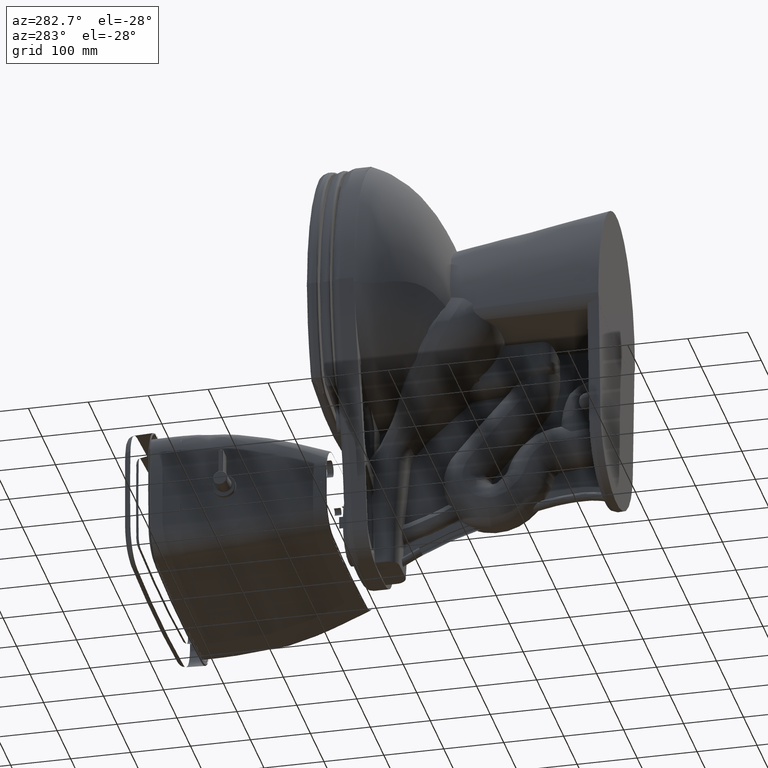
[diagram: clean part render]
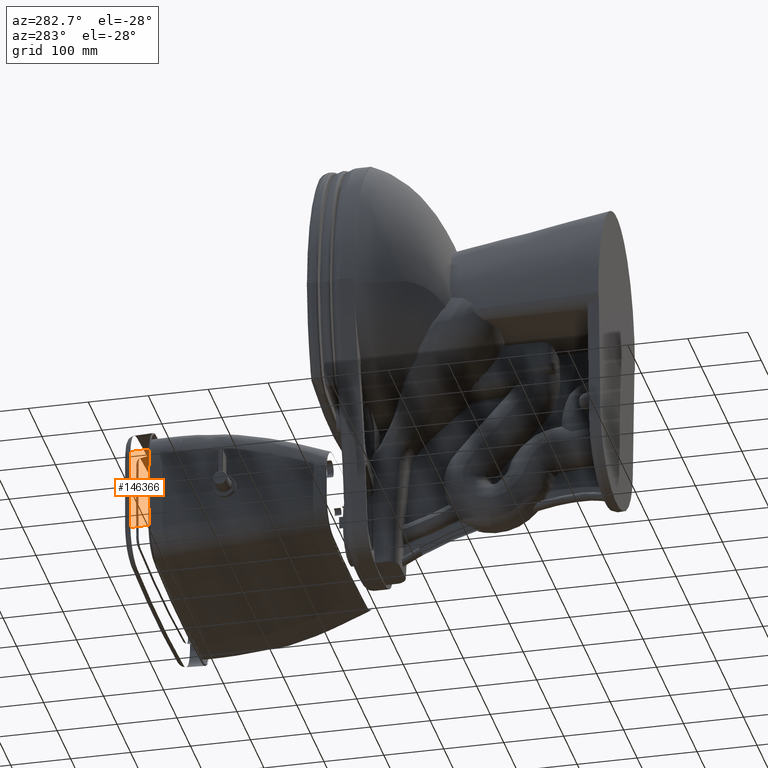
[diagram: same view with one face highlighted and labeled with its STEP entity id]
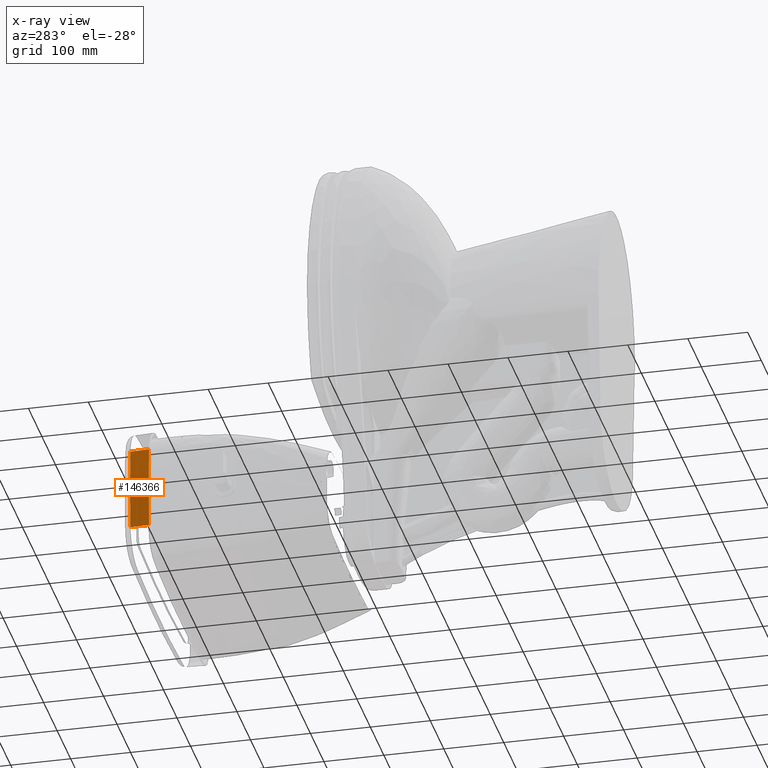
[diagram: x-ray of the same camera — body ghosted, the highlighted face saturated]
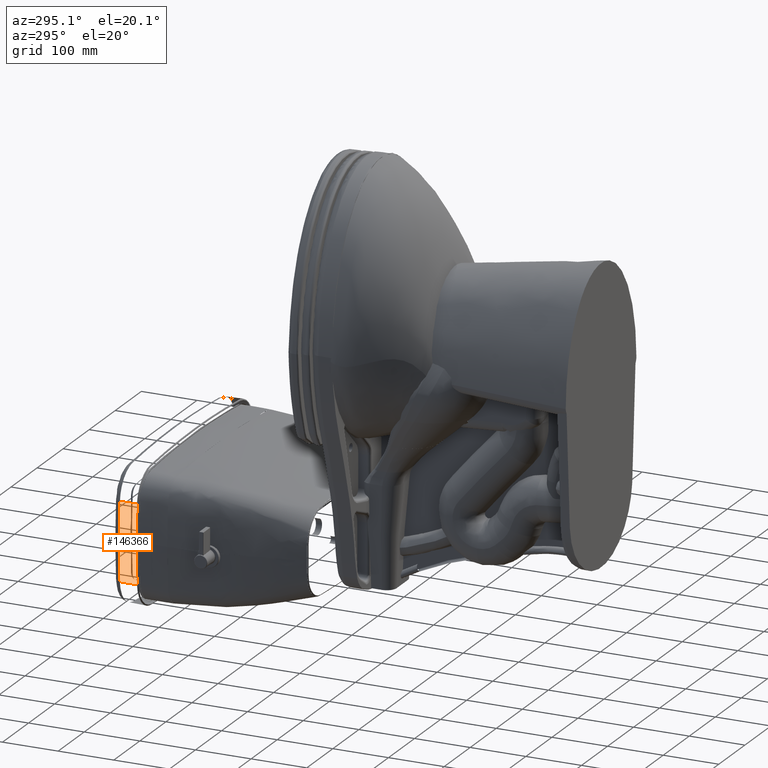
[diagram: same view with one face highlighted and labeled with its STEP entity id]
A machine part, auxiliary view. The second image highlights one B-rep face of the part: STEP entity #146366.
The next image is the same camera in x-ray: the body ghosted, the highlighted face saturated — about 0% of this face is hidden behind the body in this view.
A second angle (auxiliary view) of the same face is appended — the face is thin or edge-on in the first view.
In plain terms, the highlighted conical surface has half-angle 2 deg.
Its self-contained STEP definition (entity closure, byte-faithful):
#1332 = CARTESIAN_POINT ( 'NONE',  ( -8.689776128685673800, 8.799267495617403500, 29.93419364536101000 ) ) ;
#7446 = LINE ( 'NONE', #28578, #119620 ) ;
#9044 = EDGE_CURVE ( 'NONE', #10402, #159187, #197382, .T. ) ;
#10402 = VERTEX_POINT ( 'NONE', #121578 ) ;
#16206 = CARTESIAN_POINT ( 'NONE',  ( -8.689776128508579900, 14.29361612886303800, 29.93548822126819800 ) ) ;
#17705 = CARTESIAN_POINT ( 'NONE',  ( 31.60824756987104000, 11.54644181361788600, 29.93483010299186400 ) ) ;
#28578 = CARTESIAN_POINT ( 'NONE',  ( -8.689776128668755800, 8.799267495618442700, 29.93419364584665500 ) ) ;
#29254 = ORIENTED_EDGE ( 'NONE', *, *, #176542, .T. ) ;
#31294 = ORIENTED_EDGE ( 'NONE', *, *, #76705, .T. ) ;
#33793 = VECTOR ( 'NONE', #66167, 39.37007874015748900 ) ;
#49313 = EDGE_LOOP ( 'NONE', ( #29254, #102422, #82248, #31294 ) ) ;
#55717 = DIRECTION ( 'NONE',  ( 2.687496538635198400E-007, -0.0002356194468205297500, 0.9999999722417017800 ) ) ;
#57031 = VERTEX_POINT ( 'NONE', #1332 ) ;
#60432 = DIRECTION ( 'NONE',  ( -2.687496538635198400E-007, 0.0002356194468205297500, -0.9999999722417017800 ) ) ;
#63698 = AXIS2_PLACEMENT_3D ( 'NONE', #17705, #153775, #154434 ) ;
#65293 = DIRECTION ( 'NONE',  ( -0.03481895169937171400, -0.002138163864430569000, -0.9993913492010253500 ) ) ;
#66167 = DIRECTION ( 'NONE',  ( 0.03481895169923329700, -0.002609115689693033100, 0.9993902306496117400 ) ) ;
#73711 = VERTEX_POINT ( 'NONE', #125623 ) ;
#76705 = EDGE_CURVE ( 'NONE', #159187, #73711, #165105, .T. ) ;
#82248 = ORIENTED_EDGE ( 'NONE', *, *, #9044, .T. ) ;
#94939 = AXIS2_PLACEMENT_3D ( 'NONE', #162482, #55717, #117118 ) ;
#102422 = ORIENTED_EDGE ( 'NONE', *, *, #134330, .T. ) ;
#103506 = CARTESIAN_POINT ( 'NONE',  ( -8.732731027192913900, 14.29683490181963300, 28.70257614296994600 ) ) ;
#108967 = CIRCLE ( 'NONE', #94939, 40.39155457701519200 ) ;
#117118 = DIRECTION ( 'NONE',  ( -3.165559036539309400E-011, -0.9999999722417378700, -0.0002356194468203128000 ) ) ;
#119620 = VECTOR ( 'NONE', #65293, 39.37007874015748900 ) ;
#121578 = CARTESIAN_POINT ( 'NONE',  ( -8.732731027353267500, 8.796629719129349200, 28.70128018763143300 ) ) ;
#125623 = CARTESIAN_POINT ( 'NONE',  ( -8.689776128525505100, 14.29361612886430600, 29.93548822078254900 ) ) ;
#126302 = FACE_OUTER_BOUND ( 'NONE', #49313, .T. ) ;
#134330 = EDGE_CURVE ( 'NONE', #57031, #10402, #7446, .T. ) ;
#146366 = ADVANCED_FACE ( 'NONE', ( #126302 ), #181276, .F. ) ;
#147257 = CARTESIAN_POINT ( 'NONE',  ( 31.60824723852614300, 11.54673231185299000, 28.70191732367676700 ) ) ;
#153775 = DIRECTION ( 'NONE',  ( -2.687496538304969400E-007, 0.0002356194468202044900, -0.9999999722417016700 ) ) ;
#154434 = DIRECTION ( 'NONE',  ( 0.0000000000000000000, 0.9999999722417378700, 0.0002356194468202045700 ) ) ;
#159187 = VERTEX_POINT ( 'NONE', #103506 ) ;
#162482 = CARTESIAN_POINT ( 'NONE',  ( 31.60824756987103300, 11.54644181361788600, 29.93483010299188200 ) ) ;
#165105 = LINE ( 'NONE', #16206, #33793 ) ;
#165879 = DIRECTION ( 'NONE',  ( -3.166274546174998100E-011, -0.9999999722417376400, -0.0002356194468202311600 ) ) ;
#176542 = EDGE_CURVE ( 'NONE', #73711, #57031, #108967, .T. ) ;
#181276 = CONICAL_SURFACE ( 'NONE', #63698, 40.39155457701519200, 0.03490658489316610100 ) ;
#187686 = AXIS2_PLACEMENT_3D ( 'NONE', #147257, #60432, #165879 ) ;
#197382 = CIRCLE ( 'NONE', #187686, 40.43460884099909700 ) ;